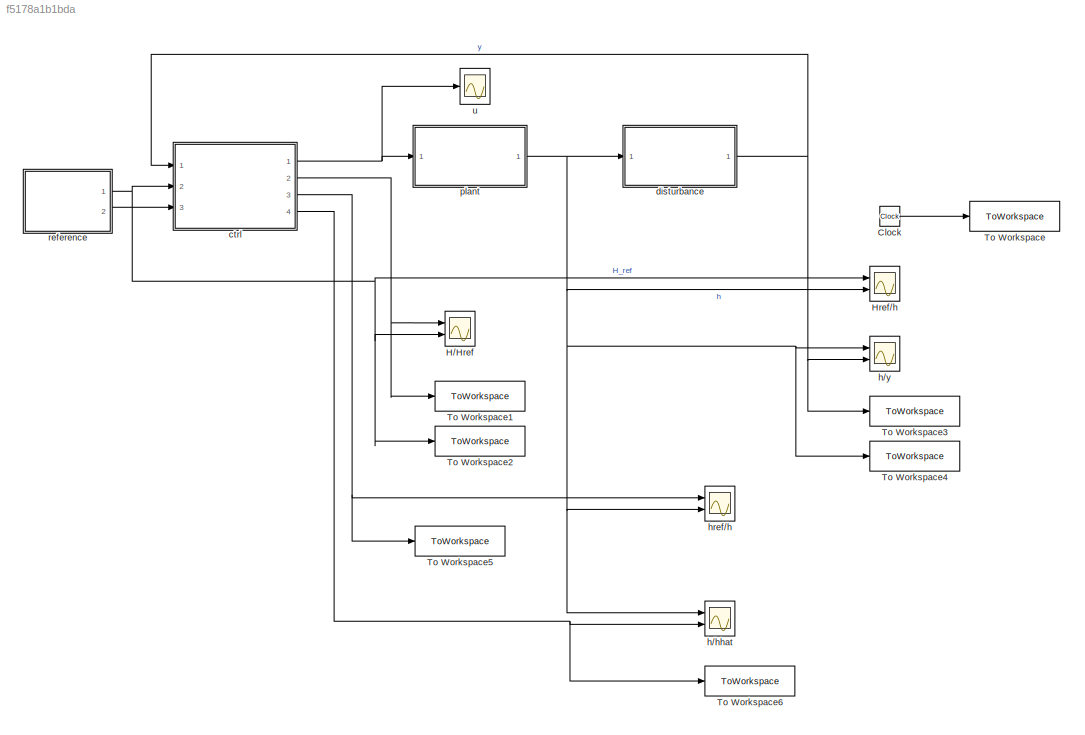
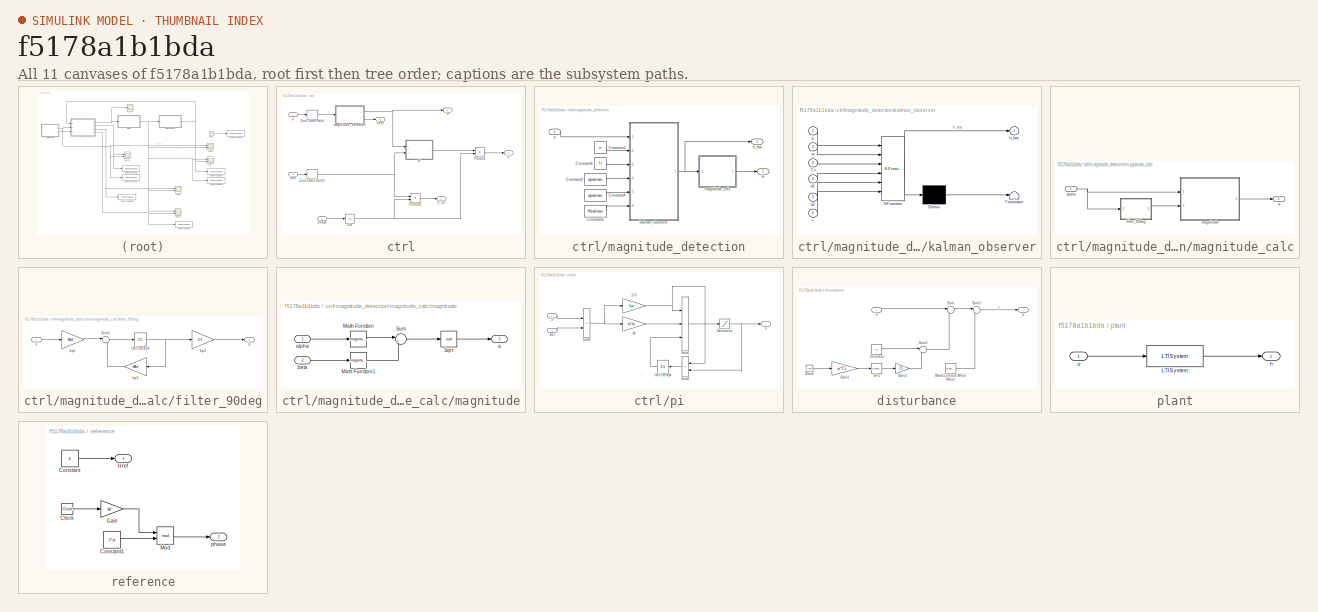
[diagram: thumbnail index - all 11 canvases of the model, root first then tree order]
MODEL slx_f5178a1b1bda
KIND model
CONFIG AbsTol = auto
CONFIG EnableMultiTasking = off
CONFIG FixedStep = auto
CONFIG MaxStep = Ts
CONFIG MinStep = auto
CONFIG RelTol = auto
CONFIG SampleTimeConstraint = Unconstrained
CONFIG Solver = ode23tb
CONFIG SolverName = ode23tb
CONFIG StartTime = 0.0
CONFIG StopTime = simlength
BLOCK [Clock] Clock
BLOCK [Scope] H//Href
  Floating = off
  NumInputPorts = 2
  Ports = [2]
  ScopeSpecificationString = Simulink.scopes.TimeScopeBlockCfg('CurrentConfiguration', extmgr.ConfigurationSet(extmgr.Configuration('Core','General UI',true),extmgr.Configuration('Core','Source UI',true),extmgr.Configuration('Sources','WiredSimulink',true,'SampleTime','Tc','DataLoggingVariableName','ScopeData2'),extmgr.Configuration('Visuals','Time Domain',true,'SerializedDisplays',{struct('MinYLimReal','-0.51906','MaxYLimRea...<+2318ch>
BLOCK [Scope] Href//h
  Floating = off
  NumInputPorts = 2
  Ports = [2]
  ScopeSpecificationString = Simulink.scopes.TimeScopeBlockCfg('CurrentConfiguration', extmgr.ConfigurationSet(extmgr.Configuration('Core','General UI',true),extmgr.Configuration('Core','Source UI',true),extmgr.Configuration('Sources','WiredSimulink',true,'SampleTime','Tc','DataLoggingVariableName','ScopeData1'),extmgr.Configuration('Visuals','Time Domain',true,'SerializedDisplays',{struct('MinYLimReal','3.00000','MaxYLimReal...<+2321ch>
BLOCK [ToWorkspace] To Workspace
  FixptAsFi = on
  MaxDataPoints = Nc
  Ports = [1]
  SampleTime = Tc
  VariableName = t
BLOCK [ToWorkspace] To Workspace1
  FixptAsFi = on
  MaxDataPoints = Nc
  Ports = [1]
  SampleTime = Tc
  VariableName = H_sim
BLOCK [ToWorkspace] To Workspace2
  FixptAsFi = on
  MaxDataPoints = Nc
  Ports = [1]
  SampleTime = Tc
  VariableName = Href_sim
BLOCK [ToWorkspace] To Workspace3
  FixptAsFi = on
  MaxDataPoints = Nc
  Ports = [1]
  SampleTime = Tc
  VariableName = y_sim
BLOCK [ToWorkspace] To Workspace4
  FixptAsFi = on
  MaxDataPoints = Nc
  Ports = [1]
  SampleTime = Tc
  VariableName = h_sim
BLOCK [ToWorkspace] To Workspace5
  FixptAsFi = on
  MaxDataPoints = Nc
  Ports = [1]
  SampleTime = Tc
  VariableName = href_sim
BLOCK [ToWorkspace] To Workspace6
  FixptAsFi = on
  MaxDataPoints = Nc
  Ports = [1]
  SampleTime = Tc
  VariableName = hhat_sim
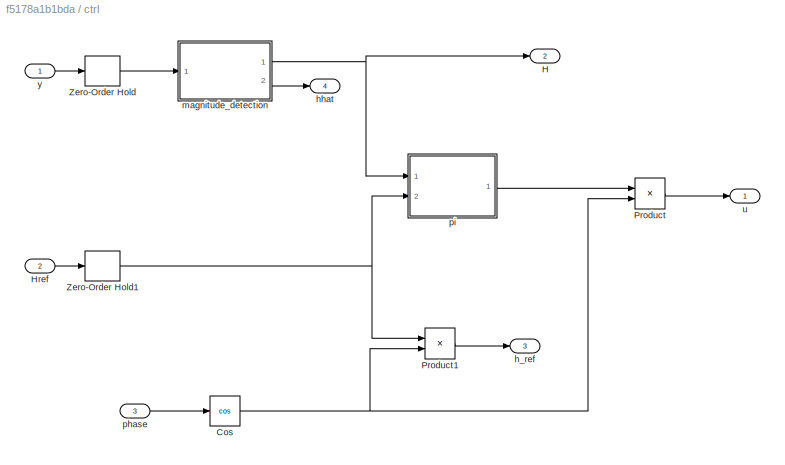
BLOCK [SubSystem] ctrl
  Ports = [3, 4]
  RequestExecContextInheritance = off
BLOCK [Trigonometry] ctrl/Cos
  Operator = cos
  Ports = [1, 1]
BLOCK [Outport] ctrl/H
  Port = 2
  VectorParamsAs1DForOutWhenUnconnected = off
BLOCK [Inport] ctrl/Href
  Port = 2
BLOCK [Product] ctrl/Product
  Ports = [2, 1]
BLOCK [Product] ctrl/Product1
  Ports = [2, 1]
BLOCK [ZeroOrderHold] ctrl/Zero-Order Hold
  SampleTime = Ts
BLOCK [ZeroOrderHold] ctrl/Zero-Order Hold1
  SampleTime = Ts
BLOCK [Outport] ctrl/h_ref
  Port = 3
  VectorParamsAs1DForOutWhenUnconnected = off
BLOCK [Outport] ctrl/hhat
  Port = 4
  VectorParamsAs1DForOutWhenUnconnected = off
BLOCK [SubSystem] ctrl/magnitude_detection
  Ports = [1, 2]
  RequestExecContextInheritance = off
BLOCK [Constant] ctrl/magnitude_detection/Constant2
  Value = w
BLOCK [Constant] ctrl/magnitude_detection/Constant3
  Value = qkalman
BLOCK [Constant] ctrl/magnitude_detection/Constant4
  Value = qkalman
BLOCK [Constant] ctrl/magnitude_detection/Constant5
  Value = Rkalman
BLOCK [Constant] ctrl/magnitude_detection/Constant6
  Value = Ts
BLOCK [Outport] ctrl/magnitude_detection/H
BLOCK [Outport] ctrl/magnitude_detection/h_hat
  Port = 2
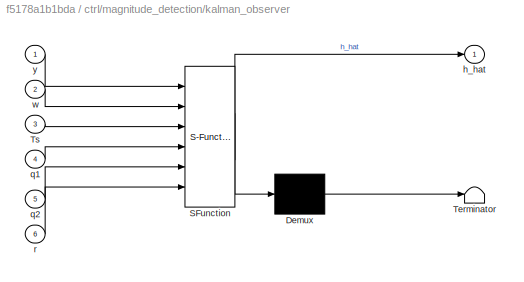
BLOCK [SubSystem] ctrl/magnitude_detection/kalman_observer
  ErrorFcn = Stateflow.Translate.translate
  PermitHierarchicalResolution = ExplicitOnly
  Ports = [6, 1]
  RequestExecContextInheritance = off
  SFBlockType = MATLAB Function
  SystemSampleTime = Ts
  TreatAsAtomicUnit = on
  TreatAsGroupedWhenPropagatingVariantConditions = off
BLOCK [Demux] ctrl/magnitude_detection/kalman_observer/ Demux 
  Outputs = 1
  Ports = [1, 1]
BLOCK [S-Function] ctrl/magnitude_detection/kalman_observer/ SFunction 
  EnableBusSupport = on
  FunctionName = sf_sfun
  PortCounts = [6 2]
  Ports = [6, 2]
  SFcnIsStateOwnerBlock = off
  SFunctionDeploymentMode = off
  Tag = Stateflow S-Function 1
BLOCK [Terminator] ctrl/magnitude_detection/kalman_observer/ Terminator 
BLOCK [Inport] ctrl/magnitude_detection/kalman_observer/Ts
  Port = 3
BLOCK [Outport] ctrl/magnitude_detection/kalman_observer/h_hat
  VectorParamsAs1DForOutWhenUnconnected = off
BLOCK [Inport] ctrl/magnitude_detection/kalman_observer/q1
  Port = 4
BLOCK [Inport] ctrl/magnitude_detection/kalman_observer/q2
  Port = 5
BLOCK [Inport] ctrl/magnitude_detection/kalman_observer/r
  Port = 6
BLOCK [Inport] ctrl/magnitude_detection/kalman_observer/w
  Port = 2
BLOCK [Inport] ctrl/magnitude_detection/kalman_observer/y
BLOCK [SubSystem] ctrl/magnitude_detection/magnitude_calc
  Ports = [1, 1]
  RequestExecContextInheritance = off
BLOCK [Outport] ctrl/magnitude_detection/magnitude_calc/a
BLOCK [Inport] ctrl/magnitude_detection/magnitude_calc/alpha
BLOCK [SubSystem] ctrl/magnitude_detection/magnitude_calc/filter_90deg
  Ports = [1, 1]
  RequestExecContextInheritance = off
BLOCK [Sum] ctrl/magnitude_detection/magnitude_calc/filter_90deg/Sum5
  Inputs = |++
  Ports = [2, 1]
BLOCK [UnitDelay] ctrl/magnitude_detection/magnitude_calc/filter_90deg/Unit Delay4
  HasFrameUpgradeWarning = on
  NameLocation = top
  SampleTime = Ts
BLOCK [Gain] ctrl/magnitude_detection/magnitude_calc/filter_90deg/kp1
  Gain = Bfd
  Multiplication = Matrix(K*u)
  OutDataTypeStr = Inherit: Same as input
  ParamDataTypeStr = Inherit: Same as input
  SaturateOnIntegerOverflow = on
BLOCK [Gain] ctrl/magnitude_detection/magnitude_calc/filter_90deg/kp2
  Gain = Afd
  Multiplication = Matrix(K*u)
  NameLocation = top
  OutDataTypeStr = Inherit: Same as input
  ParamDataTypeStr = Inherit: Same as input
  SaturateOnIntegerOverflow = on
BLOCK [Gain] ctrl/magnitude_detection/magnitude_calc/filter_90deg/kp3
  Gain = Cf
  Multiplication = Matrix(K*u)
  OutDataTypeStr = Inherit: Same as input
  ParamDataTypeStr = Inherit: Same as input
  SaturateOnIntegerOverflow = on
BLOCK [Inport] ctrl/magnitude_detection/magnitude_calc/filter_90deg/u
BLOCK [Outport] ctrl/magnitude_detection/magnitude_calc/filter_90deg/y
BLOCK [SubSystem] ctrl/magnitude_detection/magnitude_calc/magnitude
  Ports = [2, 1]
  RequestExecContextInheritance = off
BLOCK [Math] ctrl/magnitude_detection/magnitude_calc/magnitude/Math Function
  Operator = magnitude^2
  Ports = [1, 1]
BLOCK [Math] ctrl/magnitude_detection/magnitude_calc/magnitude/Math Function1
  Operator = magnitude^2
  Ports = [1, 1]
BLOCK [Sqrt] ctrl/magnitude_detection/magnitude_calc/magnitude/Sqrt
BLOCK [Sum] ctrl/magnitude_detection/magnitude_calc/magnitude/Sum
  Inputs = |++
  Ports = [2, 1]
BLOCK [Outport] ctrl/magnitude_detection/magnitude_calc/magnitude/a
  NameLocation = top
BLOCK [Inport] ctrl/magnitude_detection/magnitude_calc/magnitude/alpha
BLOCK [Inport] ctrl/magnitude_detection/magnitude_calc/magnitude/beta
  Port = 2
BLOCK [Inport] ctrl/magnitude_detection/y
BLOCK [Inport] ctrl/phase
  Port = 3
BLOCK [SubSystem] ctrl/pi
  Ports = [2, 1]
  RequestExecContextInheritance = off
BLOCK [Gain] ctrl/pi/1//Ti
  Gain = kp
  OutDataTypeStr = Inherit: Same as input
  ParamDataTypeStr = Inherit: Same as input
  SaturateOnIntegerOverflow = on
BLOCK [Saturate] ctrl/pi/Saturation
  LowerLimit = sat_neg
  UpperLimit = sat_pos
BLOCK [Sum] ctrl/pi/Sum1
  IconShape = rectangular
  Inputs = +++
  Ports = [3, 1]
  SaturateOnIntegerOverflow = on
BLOCK [Sum] ctrl/pi/Sum2
  IconShape = rectangular
  Inputs = -+
  Ports = [2, 1]
  SaturateOnIntegerOverflow = on
BLOCK [Sum] ctrl/pi/Sum3
  IconShape = rectangular
  Inputs = -+
  NameLocation = top
  Ports = [2, 1]
  SaturateOnIntegerOverflow = on
BLOCK [UnitDelay] ctrl/pi/Unit Delay4
  HasFrameUpgradeWarning = on
  SampleTime = ts
BLOCK [Gain] ctrl/pi/kp
  Gain = ki*ts
  OutDataTypeStr = Inherit: Same as input
  ParamDataTypeStr = Inherit: Same as input
  SaturateOnIntegerOverflow = on
BLOCK [Outport] ctrl/pi/u
BLOCK [Inport] ctrl/pi/x
BLOCK [Inport] ctrl/pi/xref
  Port = 2
BLOCK [Outport] ctrl/u
  VectorParamsAs1DForOutWhenUnconnected = off
BLOCK [Inport] ctrl/y
BLOCK [SubSystem] disturbance
  Ports = [1, 1]
  RequestExecContextInheritance = off
BLOCK [Reference] disturbance/Band-Limited White Noise  REF=simulink/Sources/Band-Limited
White Noise
  Ports = [0, 1]
  SourceBlock = simulink/Sources/Band-Limited\nWhite Noise
  SourceProductBaseCode = SL
  SourceType = Band-Limited White Noise.
BLOCK [Clock] disturbance/Clock
BLOCK [Constant] disturbance/Constant
  Value = 10
BLOCK [Gain] disturbance/Gain1
  Gain = w*7.5
BLOCK [Gain] disturbance/Gain3
  Gain = 25
BLOCK [Trigonometry] disturbance/Sin1
  Ports = [1, 1]
BLOCK [Sum] disturbance/Sum
  Inputs = |++
  Ports = [2, 1]
BLOCK [Sum] disturbance/Sum1
  Inputs = |++
  Ports = [2, 1]
BLOCK [Sum] disturbance/Sum2
  Inputs = |++
  Ports = [2, 1]
BLOCK [Inport] disturbance/h
BLOCK [Outport] disturbance/y
BLOCK [Scope] h//hhat
  Floating = off
  NumInputPorts = 2
  Ports = [2]
  ScopeSpecificationString = Simulink.scopes.TimeScopeBlockCfg('CurrentConfiguration', extmgr.ConfigurationSet(extmgr.Configuration('Core','General UI',true),extmgr.Configuration('Core','Source UI',true),extmgr.Configuration('Sources','WiredSimulink',true,'SampleTime','Tc','DataLoggingVariableName','ScopeData2'),extmgr.Configuration('Visuals','Time Domain',true,'SerializedDisplays',{struct('MinYLimReal','-4.01148','MaxYLimRea...<+1733ch>
BLOCK [Scope] h//y
  Floating = off
  NumInputPorts = 2
  Ports = [2]
  ScopeSpecificationString = Simulink.scopes.TimeScopeBlockCfg('CurrentConfiguration', extmgr.ConfigurationSet(extmgr.Configuration('Core','General UI',true),extmgr.Configuration('Core','Source UI',true),extmgr.Configuration('Sources','WiredSimulink',true,'SampleTime','Tc','DataLoggingVariableName','ScopeData1'),extmgr.Configuration('Visuals','Time Domain',true,'SerializedDisplays',{struct('MinYLimReal','-7.04888','MaxYLimRea...<+2288ch>
BLOCK [Scope] href//h
  Floating = off
  NumInputPorts = 2
  Ports = [2]
  ScopeSpecificationString = Simulink.scopes.TimeScopeBlockCfg('CurrentConfiguration', extmgr.ConfigurationSet(extmgr.Configuration('Core','General UI',true),extmgr.Configuration('Core','Source UI',true),extmgr.Configuration('Sources','WiredSimulink',true,'SampleTime','Tc','DataLoggingVariableName','ScopeData1'),extmgr.Configuration('Visuals','Time Domain',true,'SerializedDisplays',{struct('MinYLimReal','-19.20346','MaxYLimRe...<+1761ch>
BLOCK [SubSystem] plant
  Ports = [1, 1]
  RequestExecContextInheritance = off
BLOCK [Reference] plant/LTI System  REF=cstblocks/LTI System
  Ports = [1, 1]
  SourceBlock = cstblocks/LTI System
  SourceProductBaseCode = CT
  SourceType = LTI Block
BLOCK [Outport] plant/h
  VectorParamsAs1DForOutWhenUnconnected = off
BLOCK [Inport] plant/u
BLOCK [SubSystem] reference
  Ports = [0, 2]
  RequestExecContextInheritance = off
BLOCK [Clock] reference/Clock
BLOCK [Constant] reference/Constant
  Value = 4
BLOCK [Constant] reference/Constant1
  Value = 2*pi
BLOCK [Gain] reference/Gain
  Gain = w
BLOCK [Outport] reference/Href
BLOCK [Math] reference/Mod
  Operator = mod
  Ports = [2, 1]
BLOCK [Outport] reference/phase
  Port = 2
BLOCK [Scope] u
  Floating = off
  NumInputPorts = 1
  Ports = [1]
  ScopeSpecificationString = Simulink.scopes.TimeScopeBlockCfg('CurrentConfiguration', extmgr.ConfigurationSet(extmgr.Configuration('Core','General UI',true),extmgr.Configuration('Core','Source UI',true),extmgr.Configuration('Sources','WiredSimulink',true,'SampleTime','Tc','DataLoggingVariableName','ScopeData3'),extmgr.Configuration('Visuals','Time Domain',true,'SerializedDisplays',{struct('MinYLimReal','-5.226','MaxYLimReal'...<+2286ch>
LINE Clock:1 -> To Workspace:1
NET ctrl/Cos:1 -> ctrl/Product1:2, ctrl/Product:2
LINE ctrl/Href:1 -> ctrl/Zero-Order Hold1:1
LINE ctrl/Product1:1 -> ctrl/h_ref:1
LINE ctrl/Product:1 -> ctrl/u:1
NET ctrl/Zero-Order Hold1:1 -> ctrl/Product1:1, ctrl/pi:2
LINE ctrl/Zero-Order Hold:1 -> ctrl/magnitude_detection:1
LINE ctrl/magnitude_detection/Constant2:1 -> ctrl/magnitude_detection/kalman_observer:2
LINE ctrl/magnitude_detection/Constant3:1 -> ctrl/magnitude_detection/kalman_observer:4
LINE ctrl/magnitude_detection/Constant4:1 -> ctrl/magnitude_detection/kalman_observer:5
LINE ctrl/magnitude_detection/Constant5:1 -> ctrl/magnitude_detection/kalman_observer:6
LINE ctrl/magnitude_detection/Constant6:1 -> ctrl/magnitude_detection/kalman_observer:3
NET ctrl/magnitude_detection/kalman_observer:1 -> ctrl/magnitude_detection/h_hat:1, ctrl/magnitude_detection/magnitude_calc:1
NET ctrl/magnitude_detection/magnitude_calc/alpha:1 -> ctrl/magnitude_detection/magnitude_calc/filter_90deg:1, ctrl/magnitude_detection/magnitude_calc/magnitude:1
LINE ctrl/magnitude_detection/magnitude_calc/filter_90deg/Sum5:1 -> ctrl/magnitude_detection/magnitude_calc/filter_90deg/Unit Delay4:1
NET ctrl/magnitude_detection/magnitude_calc/filter_90deg/Unit Delay4:1 -> ctrl/magnitude_detection/magnitude_calc/filter_90deg/kp2:1, ctrl/magnitude_detection/magnitude_calc/filter_90deg/kp3:1
LINE ctrl/magnitude_detection/magnitude_calc/filter_90deg/kp1:1 -> ctrl/magnitude_detection/magnitude_calc/filter_90deg/Sum5:1
LINE ctrl/magnitude_detection/magnitude_calc/filter_90deg/kp2:1 -> ctrl/magnitude_detection/magnitude_calc/filter_90deg/Sum5:2
LINE ctrl/magnitude_detection/magnitude_calc/filter_90deg/kp3:1 -> ctrl/magnitude_detection/magnitude_calc/filter_90deg/y:1
LINE ctrl/magnitude_detection/magnitude_calc/filter_90deg/u:1 -> ctrl/magnitude_detection/magnitude_calc/filter_90deg/kp1:1
LINE ctrl/magnitude_detection/magnitude_calc/filter_90deg:1 -> ctrl/magnitude_detection/magnitude_calc/magnitude:2
LINE ctrl/magnitude_detection/magnitude_calc/magnitude/Math Function1:1 -> ctrl/magnitude_detection/magnitude_calc/magnitude/Sum:2
LINE ctrl/magnitude_detection/magnitude_calc/magnitude/Math Function:1 -> ctrl/magnitude_detection/magnitude_calc/magnitude/Sum:1
LINE ctrl/magnitude_detection/magnitude_calc/magnitude/Sqrt:1 -> ctrl/magnitude_detection/magnitude_calc/magnitude/a:1
LINE ctrl/magnitude_detection/magnitude_calc/magnitude/Sum:1 -> ctrl/magnitude_detection/magnitude_calc/magnitude/Sqrt:1
LINE ctrl/magnitude_detection/magnitude_calc/magnitude/alpha:1 -> ctrl/magnitude_detection/magnitude_calc/magnitude/Math Function:1
LINE ctrl/magnitude_detection/magnitude_calc/magnitude/beta:1 -> ctrl/magnitude_detection/magnitude_calc/magnitude/Math Function1:1
LINE ctrl/magnitude_detection/magnitude_calc/magnitude:1 -> ctrl/magnitude_detection/magnitude_calc/a:1
LINE ctrl/magnitude_detection/magnitude_calc:1 -> ctrl/magnitude_detection/H:1
LINE ctrl/magnitude_detection/y:1 -> ctrl/magnitude_detection/kalman_observer:1
NET ctrl/magnitude_detection:1 -> ctrl/H:1, ctrl/pi:1
LINE ctrl/magnitude_detection:2 -> ctrl/hhat:1
LINE ctrl/phase:1 -> ctrl/Cos:1
NET ctrl/pi/1//Ti:1 -> ctrl/pi/Sum1:1, ctrl/pi/Sum3:1
NET ctrl/pi/Saturation:1 -> ctrl/pi/Sum3:2, ctrl/pi/u:1
LINE ctrl/pi/Sum1:1 -> ctrl/pi/Saturation:1
NET ctrl/pi/Sum2:1 -> ctrl/pi/1//Ti:1, ctrl/pi/kp:1
LINE ctrl/pi/Sum3:1 -> ctrl/pi/Unit Delay4:1
LINE ctrl/pi/Unit Delay4:1 -> ctrl/pi/Sum1:3
LINE ctrl/pi/kp:1 -> ctrl/pi/Sum1:2
LINE ctrl/pi/x:1 -> ctrl/pi/Sum2:1
LINE ctrl/pi/xref:1 -> ctrl/pi/Sum2:2
LINE ctrl/pi:1 -> ctrl/Product:1
LINE ctrl/y:1 -> ctrl/Zero-Order Hold:1
NET ctrl:1 -> plant:1, u:1
NET ctrl:2 -> H//Href:1, To Workspace1:1
NET ctrl:3 -> To Workspace5:1, href//h:1
NET ctrl:4 -> To Workspace6:1, h//hhat:2
LINE disturbance/Band-Limited White Noise:1 -> disturbance/Sum2:2
LINE disturbance/Clock:1 -> disturbance/Gain1:1
LINE disturbance/Constant:1 -> disturbance/Sum1:1
LINE disturbance/Gain1:1 -> disturbance/Sin1:1
LINE disturbance/Gain3:1 -> disturbance/Sum1:2
LINE disturbance/Sin1:1 -> disturbance/Gain3:1
LINE disturbance/Sum1:1 -> disturbance/Sum:2
LINE disturbance/Sum2:1 -> disturbance/y:1
LINE disturbance/Sum:1 -> disturbance/Sum2:1
LINE disturbance/h:1 -> disturbance/Sum:1
NET disturbance:1 -> To Workspace3:1, ctrl:1, h//y:2
LINE plant/LTI System:1 -> plant/h:1
LINE plant/u:1 -> plant/LTI System:1
NET plant:1 -> Href//h:2, To Workspace4:1, disturbance:1, h//hhat:1, h//y:1, href//h:2
LINE reference/Clock:1 -> reference/Gain:1
LINE reference/Constant1:1 -> reference/Mod:2
LINE reference/Constant:1 -> reference/Href:1
LINE reference/Gain:1 -> reference/Mod:1
LINE reference/Mod:1 -> reference/phase:1
NET reference:1 -> H//Href:2, Href//h:1, To Workspace2:1, ctrl:2
LINE reference:2 -> ctrl:3
note: NET lines group one-source signal fan-out (src -> all destinations, sorted); 1:1 wires keep LINE
CHART ctrl/magnitude_detection/kalman_observer states=1 transitions=1
  STATE_LABEL 'eML_blk_kernel()'
  STATE_LABEL 'SCRIPT:\nfunction h_hat   = KFO(y,w,Ts,q1,q2,r)\n\n    persistent   x1_po x2_po p11_po p12_po p21_po p22_po\n\n    if isempty(x1_po)\n        x1_po = 0;\n        x2_po = 0;\n        p11_po = 0;\n        p12_po = 0;\n        p21_po = 0;\n        p22_po = 0;        \n    end\n    \n    a11 = cos(w*Ts);\n    a12 = sin(w*Ts);\n    a21 = -sin(w*Ts);\n    a22 = cos(w*Ts);\n   \n    \n    \n    x1_pr = a11*x1_po + a12*x2_po;...<+639ch>'
CHART  states=0 transitions=0
